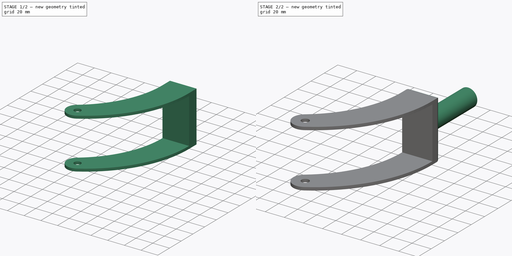
[diagram: build sequence overview — one tinted view per stage of 2, left to right]
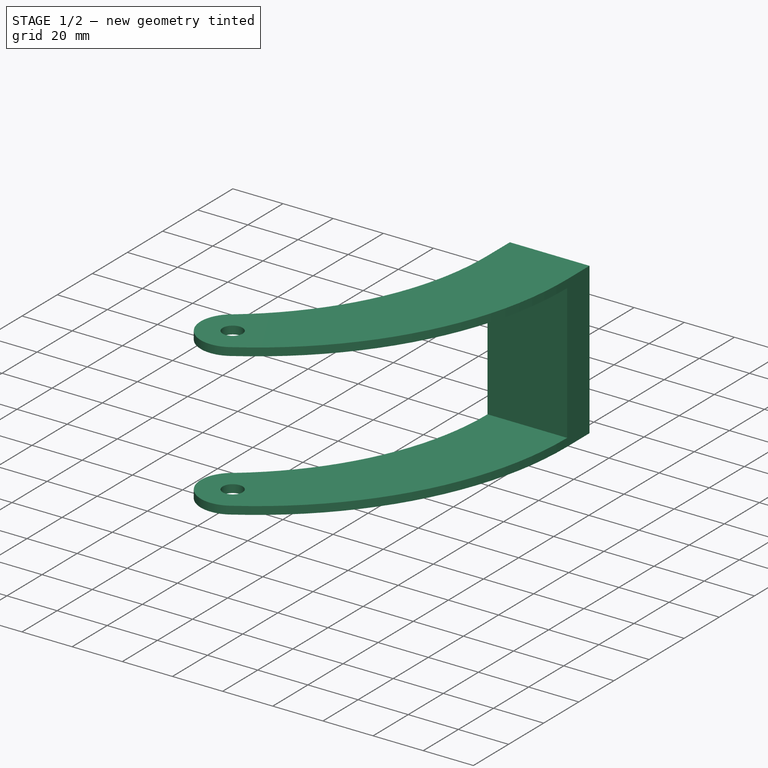
[diagram: stage 1 of 2 — iso view after this stage's code; geometry added in this stage tinted green]
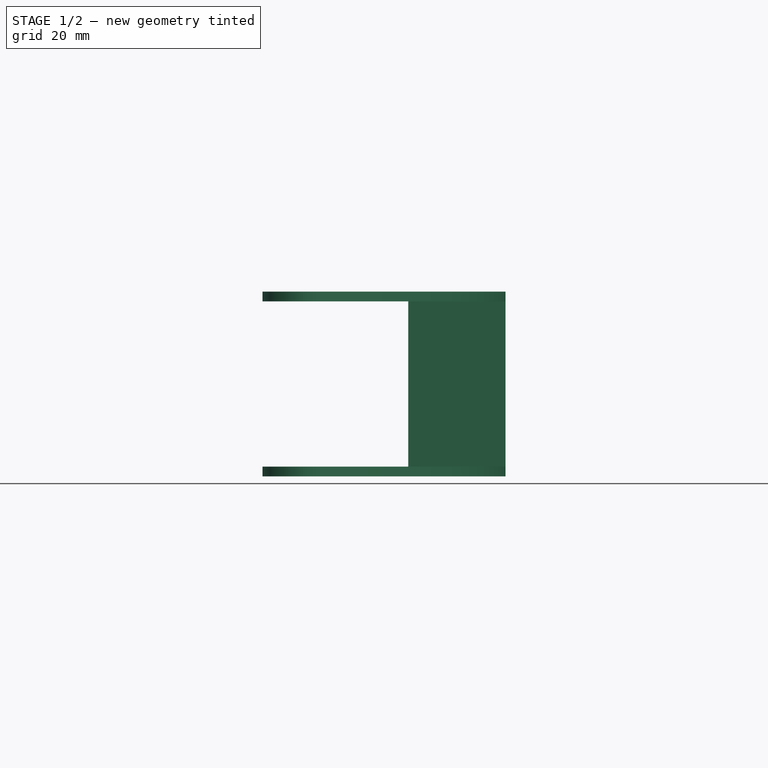
[diagram: stage 1 of 2 — front view after this stage's code; geometry added in this stage tinted green]
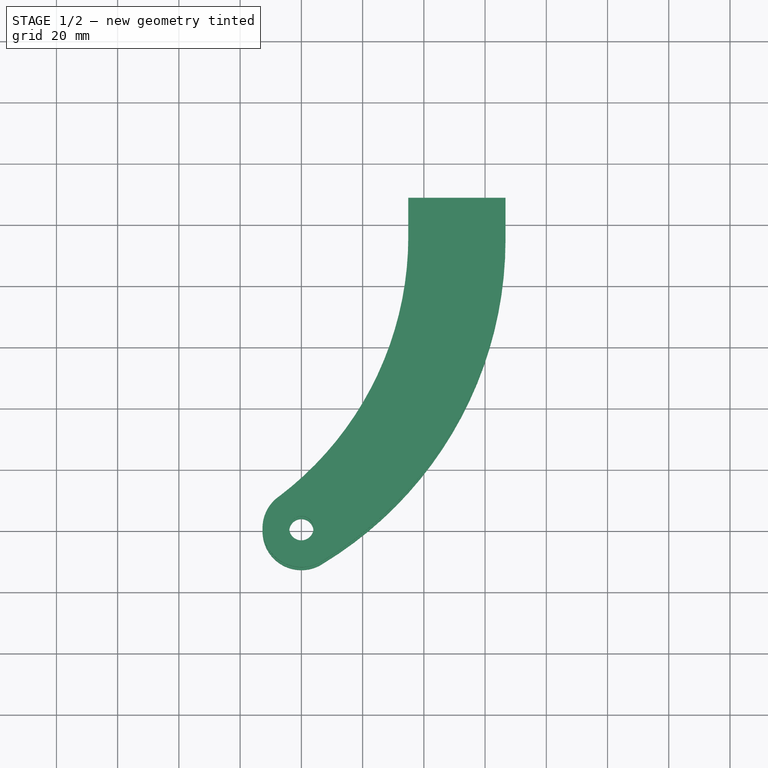
[diagram: stage 1 of 2 — top view after this stage's code; geometry added in this stage tinted green]
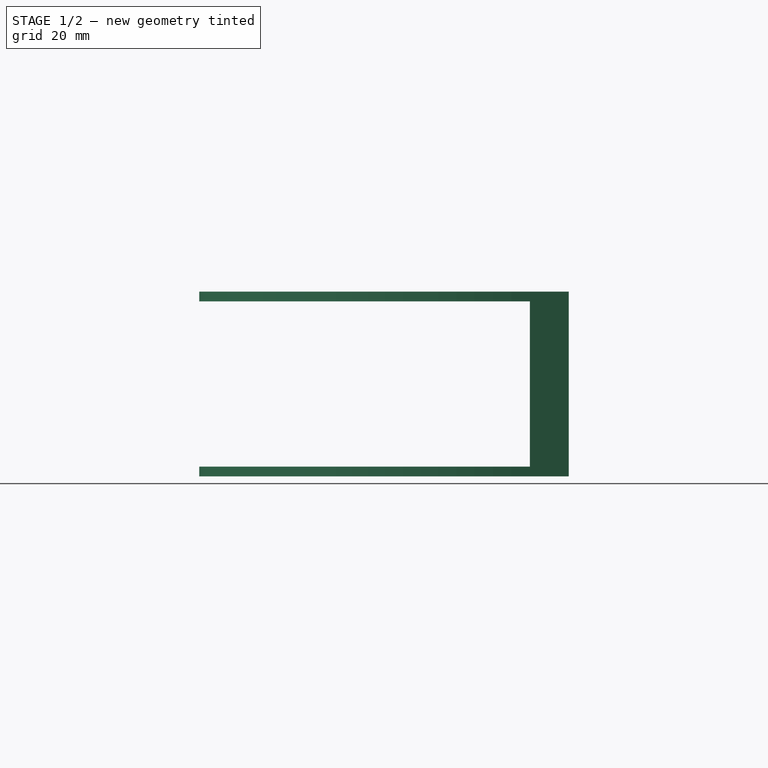
[diagram: stage 1 of 2 — right view after this stage's code; geometry added in this stage tinted green]
FCSTD DOCUMENT  (FreeCAD 0.21R33345 (Git))
Label: Caster fork
License: All rights reserved
LicenseURL: http://en.wikipedia.org/wiki/All_rights_reserved
objects: Sketcher::SketchObject×3, PartDesign::Pad×2, PartDesign::Pocket×1, PartDesign::Fillet×1, PartDesign::Body×1
note: 12 computed .brp shape members not serialized (recipe doc carries the construction recipe); baked Part::Feature solids carry a one-line shape summary decoded from their .brp

FEATURE [Sketcher::SketchObject] Sketch
  FullyConstrained = true
  MapMode = 5
  Support = -> [XY_Plane]
  sketch-geometry (11):
    g0: ArcOfCircle CenterX=0 CenterY=2.84e-14 CenterZ=0 NormalX=0 NormalY=0 NormalZ=1 AngleXU=0 Radius=12.7 StartAngle=2.16168 EndAngle=5.30327
    g1: Circle CenterX=0 CenterY=2.84e-14 CenterZ=0 NormalX=0 NormalY=0 NormalZ=1 AngleXU=0 Radius=3.969
    g2: ArcOfCircle CenterX=-71.4873 CenterY=95.25 CenterZ=0 NormalX=0 NormalY=0 NormalZ=1 AngleXU=0 Radius=106.412 StartAngle=5.36254 EndAngle=6.28319
    g3: ArcOfCircle CenterX=-63.8969 CenterY=95.25 CenterZ=0 NormalX=0 NormalY=0 NormalZ=1 AngleXU=0 Radius=114.697 StartAngle=5.30327 EndAngle=6.28319
    g4: ArcOfCircle CenterX=-57.0256 CenterY=95.25 CenterZ=0 NormalX=0 NormalY=0 NormalZ=1 AngleXU=0 Radius=123.701 StartAngle=5.25713 EndAngle=6.28319
    g5: LineSegment StartX=-7.07509 StartY=10.5467 StartZ=0 EndX=7.07509 EndY=-10.5467 EndZ=0
    g6: LineSegment StartX=0 StartY=2.84e-14 StartZ=0 EndX=-10.5467 EndY=-7.07509 EndZ=0
    g7: LineSegment StartX=34.925 StartY=95.25 StartZ=0 EndX=34.925 EndY=107.95 EndZ=0
    g8: LineSegment StartX=66.675 StartY=95.25 StartZ=0 EndX=66.675 EndY=107.95 EndZ=0
    g9: LineSegment StartX=34.925 StartY=107.95 StartZ=0 EndX=66.675 EndY=107.95 EndZ=0
    g10: LineSegment StartX=50.8 StartY=107.95 StartZ=0 EndX=50.8 EndY=95.25 EndZ=0
  constraints (32):
    c: Coincident(g0,g-1)
    c: Coincident(g1,g0)
    c: Coincident(g3,g0)
    c: Horizontal(g2,g3)
    c: Horizontal(g4,g3)
    c: Coincident(g5,g0)
    c: Coincident(g5,g0)
    c: Coincident(g0,g2)
    c: Coincident(g0,g4)
    c: PointOnObject(g0,g5)
    c: Coincident(g6,g0)
    c: PointOnObject(g6,g0)
    c: Perpendicular(g6,g5)
    c: Tangent(g3,g6)
    c: Vertical(g7)
    c: Coincident(g8,g4)
    c: Vertical(g8)
    c: Coincident(g9,g7)
    c: Coincident(g9,g8)
    c: Horizontal(g9)
    c: PointOnObject(g10,g9)
    c: Symmetric(g8,g7,g10)
    c: Coincident(g10,g3)
    c: Horizontal(g2,g4)
    c: Horizontal(g3,g2)
    c: Diameter(g1) = 7.938
    c: Distance(g5) = 25.4
    c: DistanceX(g9,g9) = 31.75
    c: DistanceX(g0,g3) = 50.8
    c: DistanceY(g0,g3) = 95.25
    c: DistanceY(g8,g8) = 12.7
    c: Tangent(g7,g2) = -1.5708
FEATURE [PartDesign::Pad] Pad
  Direction = (0,0,1)
  Length = 60.325
  Length2 = 10
  Midplane = true
  Profile = -> Sketch
  ReferenceAxis = -> Sketch [N_Axis]
  Refine = true
  Type = 0
FEATURE [Sketcher::SketchObject] Sketch001
  ExternalGeometry = -> [Pad]
  FullyConstrained = true
  MapMode = 5
  Placement = pos=(66.675,0,0) rot=(0.57735,0.57735,0.57735;2.0944rad)
  Support = -> [Pad]
  sketch-geometry (4):
    g0: LineSegment StartX=95.25 StartY=26.9875 StartZ=0 EndX=-31.75 EndY=26.9875 EndZ=0
    g1: LineSegment StartX=-31.75 StartY=26.9875 StartZ=0 EndX=-31.75 EndY=-26.9875 EndZ=0
    g2: LineSegment StartX=-31.75 StartY=-26.9875 StartZ=0 EndX=95.25 EndY=-26.9875 EndZ=0
    g3: LineSegment StartX=95.25 StartY=-26.9875 StartZ=0 EndX=95.25 EndY=26.9875 EndZ=0
  constraints (11):
    c: Coincident(g0,g1)
    c: Coincident(g1,g2)
    c: Coincident(g2,g3)
    c: Coincident(g3,g0)
    c: Horizontal(g0)
    c: Horizontal(g2)
    c: Vertical(g1)
    c: PointOnObject(g0,g-3)
    c: DistanceY(g3,g3) = 53.975
    c: Symmetric(g0,g2,g-1)
    c: DistanceX(g2,g2) = 127
FEATURE [PartDesign::Pocket] Pocket
  BaseFeature = -> Pad
  Direction = (-1,0,0)
  Length = 5
  Length2 = 5
  Profile = -> Sketch001
  ReferenceAxis = -> Sketch001 [N_Axis]
  Refine = true
  Type = 1
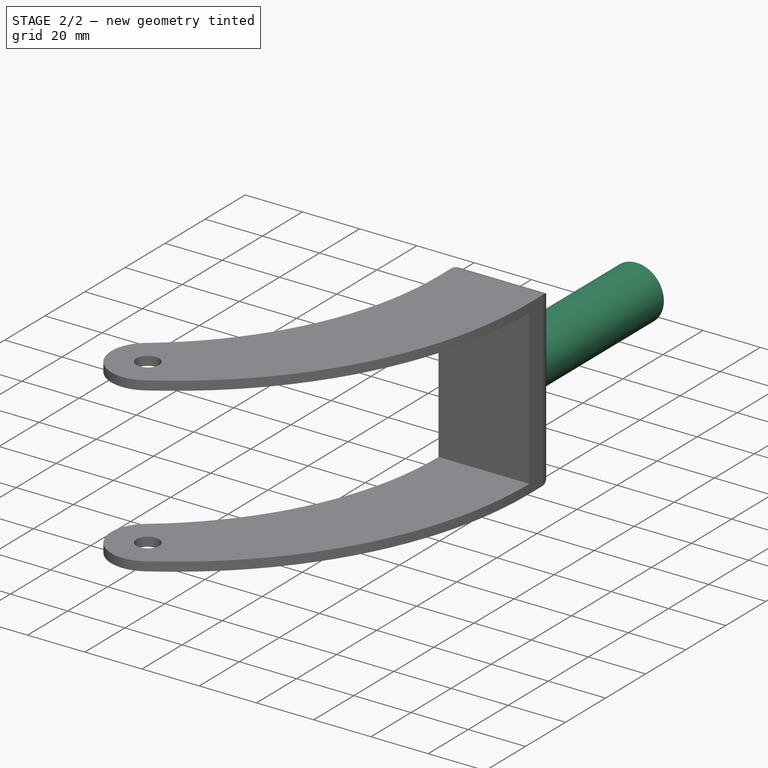
[diagram: stage 2 of 2 — iso view after this stage's code; geometry added in this stage tinted green]
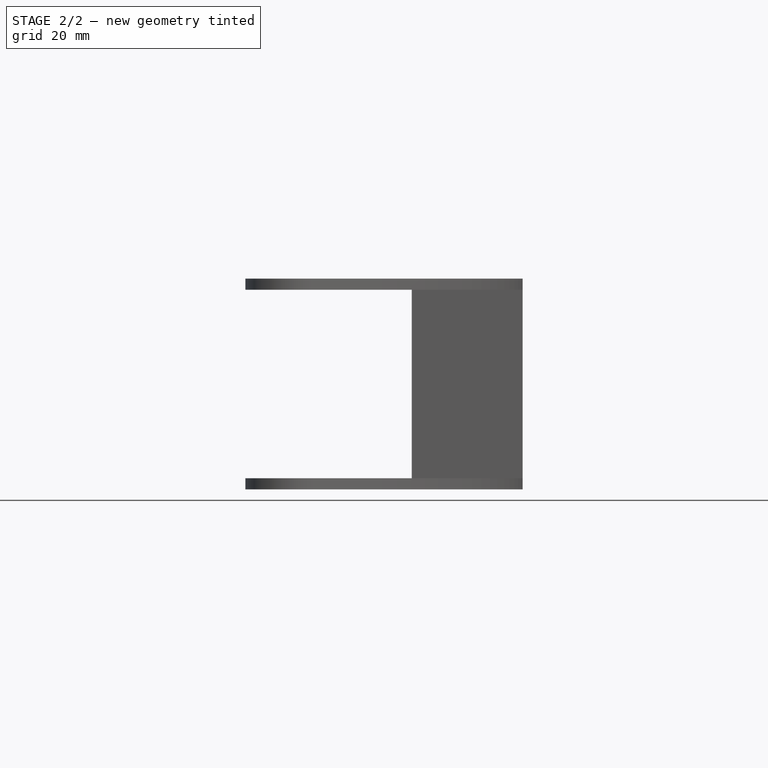
[diagram: stage 2 of 2 — front view after this stage's code; geometry added in this stage tinted green]
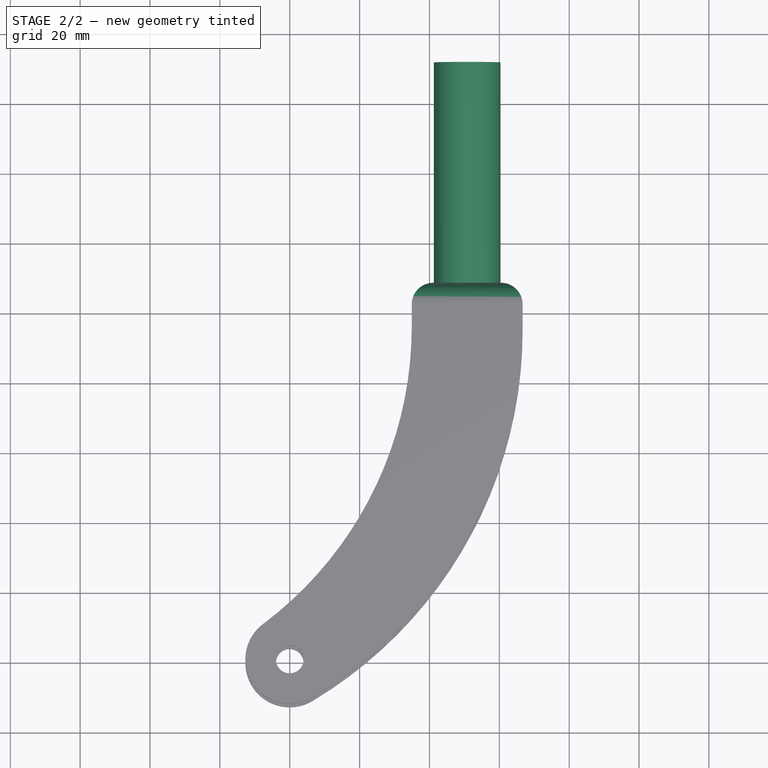
[diagram: stage 2 of 2 — top view after this stage's code; geometry added in this stage tinted green]
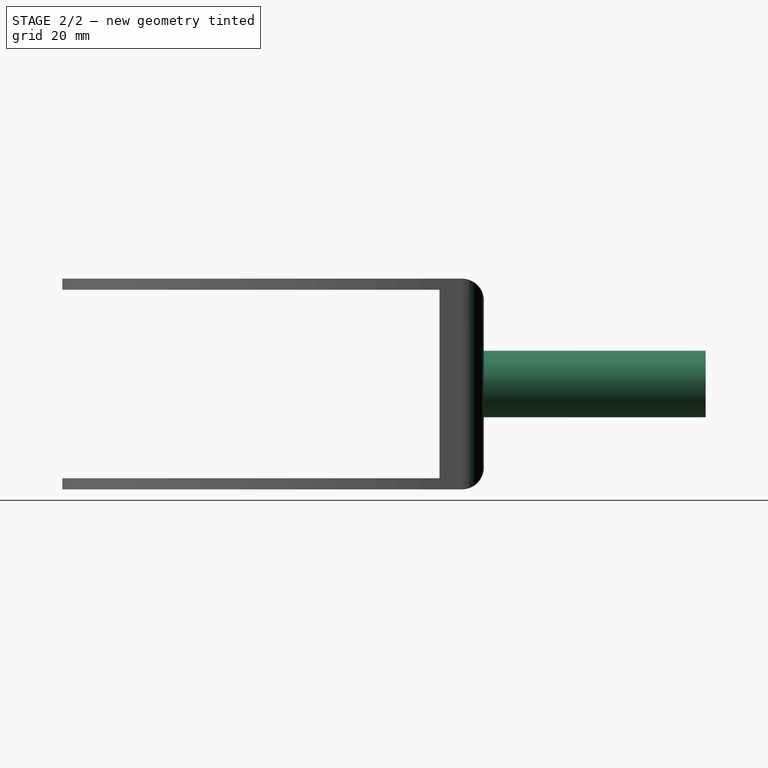
[diagram: stage 2 of 2 — right view after this stage's code; geometry added in this stage tinted green]
FEATURE [Sketcher::SketchObject] Sketch002
  ExternalGeometry = -> [Pocket]
  FullyConstrained = true
  MapMode = 5
  Placement = pos=(0,107.95,0) rot=(0,0.707107,0.707107;3.14159rad)
  Support = -> [Pocket]
  sketch-geometry (2):
    g0: LineSegment StartX=-34.925 StartY=0 StartZ=0 EndX=-66.675 EndY=0 EndZ=0
    g1: Circle CenterX=-50.8 CenterY=0 CenterZ=0 NormalX=0 NormalY=0 NormalZ=1 AngleXU=0 Radius=9.525
  constraints (6):
    c: PointOnObject(g0,g-3)
    c: PointOnObject(g0,g-4)
    c: Horizontal(g0)
    c: PointOnObject(g0,g-1)
    c: Symmetric(g0,g0,g1)
    c: Diameter(g1) = 19.05
FEATURE [PartDesign::Pad] Pad001
  BaseFeature = -> Pocket
  Direction = (0,1,-2e-16)
  Length = 63.5
  Length2 = 10
  Profile = -> Sketch002
  ReferenceAxis = -> Sketch002 [N_Axis]
  Refine = true
  Type = 0
FEATURE [PartDesign::Fillet] Fillet
  Base = -> Pad001 [Edge25,Edge23,Edge13,Edge8]
  BaseFeature = -> Pad001
  Radius = 6.3
  Refine = true
  SupportTransform = false
  UseAllEdges = false
FEATURE [PartDesign::Body] Body
  Group = -> [Sketch,Pad,Sketch001,Pocket,Sketch002,Pad001,Fillet]
  Origin = -> Origin
  Tip = -> Fillet
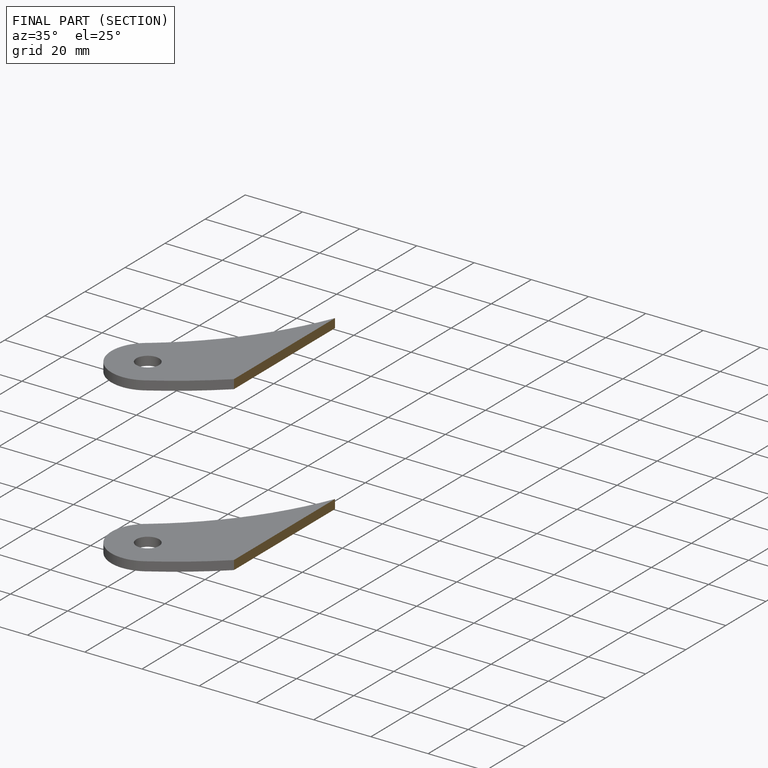
[diagram: finished part — half-section view (interior)]
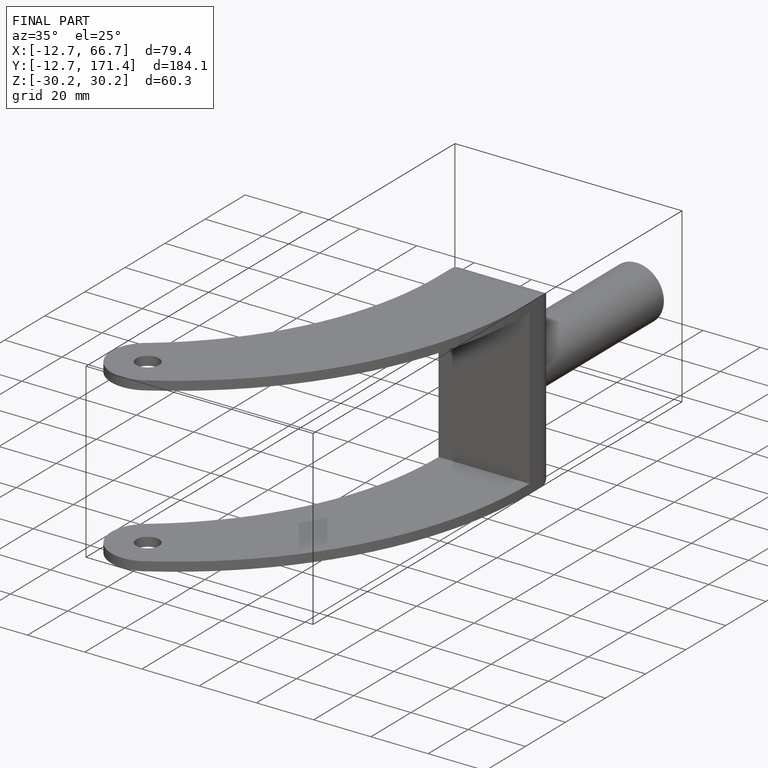
[diagram: finished part — iso view with bounding-box wireframe]
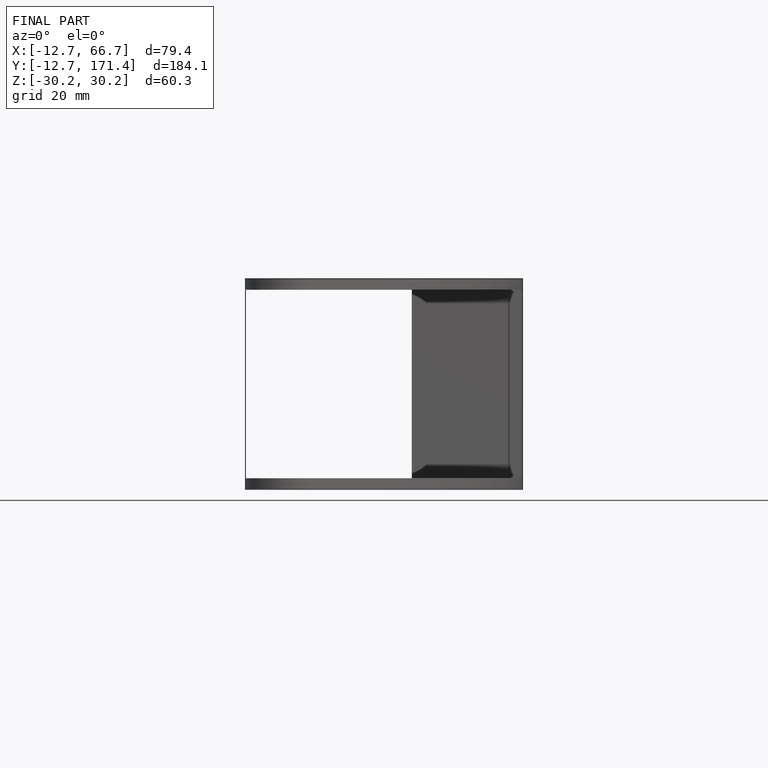
[diagram: finished part — front view with bounding-box wireframe]
